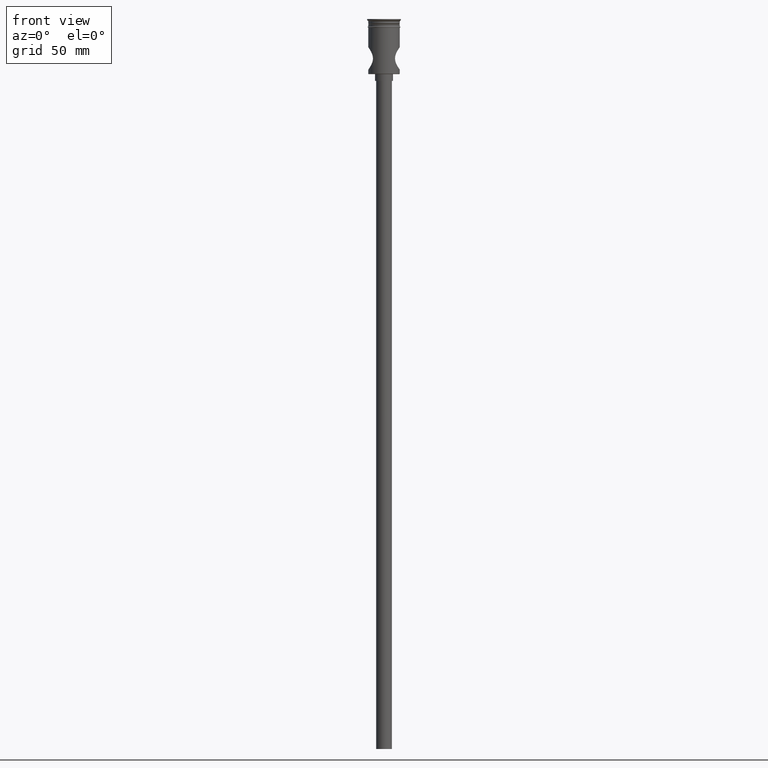
[diagram: clean part render]
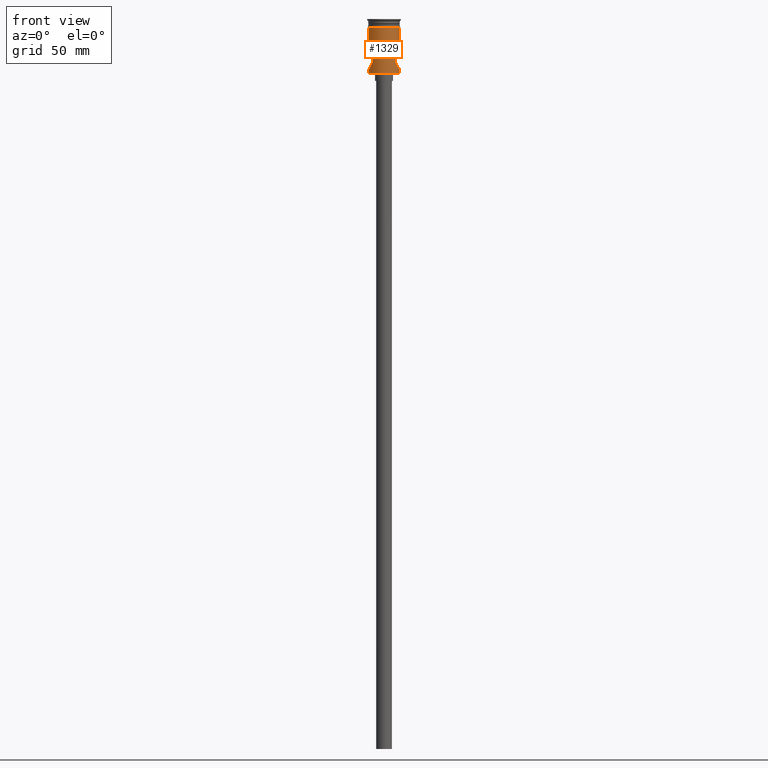
[diagram: same view with one face highlighted and labeled with its STEP entity id]
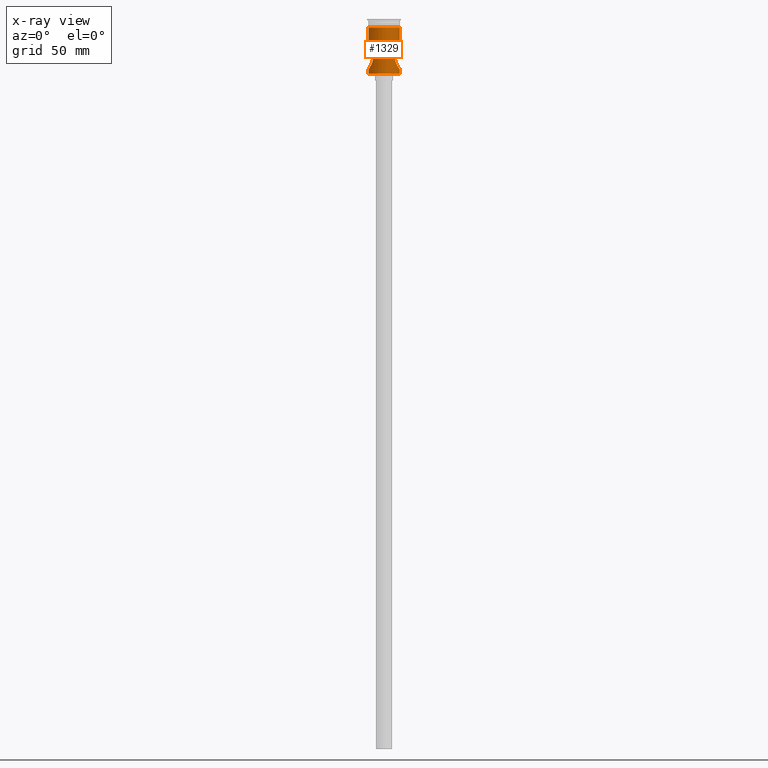
[diagram: x-ray of the same camera — body ghosted, the highlighted face saturated]
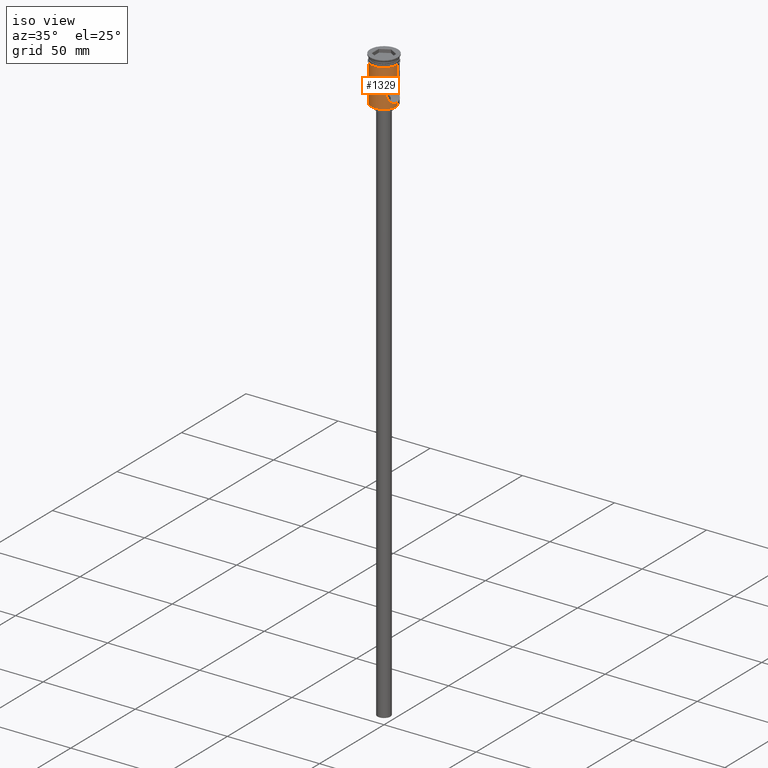
[diagram: same view with one face highlighted and labeled with its STEP entity id]
A machine part, front view. The second image highlights one B-rep face of the part: STEP entity #1329.
The next image is the same camera in x-ray: the body ghosted, the highlighted face saturated — about 0% of this face is hidden behind the body in this view.
A second angle (iso view) of the same face is appended — the face is thin or edge-on in the first view.
In plain terms, the highlighted cylindrical surface (edge-blend (fillet) strip) has radius 7 mm, axis along (-0, -0, 1).
Its self-contained STEP definition (entity closure, byte-faithful):
#3 = CARTESIAN_POINT ( 'NONE',  ( 6.624517184282109561, -2.266908297124829108, -13.04044276553849002 ) ) ;
#13 = CYLINDRICAL_SURFACE ( 'NONE', #475, 6.999999999999996447 ) ;
#17 = CARTESIAN_POINT ( 'NONE',  ( 5.900022963542600252, -3.775732323944060553, -14.20705562262494759 ) ) ;
#26 = CARTESIAN_POINT ( 'NONE',  ( 5.766850669963372589, -3.973799787454027399, -14.44906282454845936 ) ) ;
#36 = CARTESIAN_POINT ( 'NONE',  ( -6.999999999999996447, 8.572533153570467989E-16, -12.50000000000000000 ) ) ;
#70 = VECTOR ( 'NONE', #1303, 1000.000000000000000 ) ;
#80 = CARTESIAN_POINT ( 'NONE',  ( -6.163412594259888522, -3.328521687271349894, -13.75554919995812675 ) ) ;
#85 = CARTESIAN_POINT ( 'NONE',  ( -6.877389265331919077, -1.346411915329735587, -12.67290639567982424 ) ) ;
#103 = CARTESIAN_POINT ( 'NONE',  ( -5.328862411543377142, -4.539851137495588773, -15.39859786766767336 ) ) ;
#110 = CARTESIAN_POINT ( 'NONE',  ( 6.878322084194203434, -1.341499001965813509, -22.32841954660989003 ) ) ;
#117 = CARTESIAN_POINT ( 'NONE',  ( 6.999999999999999112, 0.000000000000000000, -3.799999999999998490 ) ) ;
#118 = CARTESIAN_POINT ( 'NONE',  ( 6.289754092268240449, -3.085829967940952656, -13.55283859579834527 ) ) ;
#140 = CARTESIAN_POINT ( 'NONE',  ( 4.908461367085028115, -4.990754227678548816, -17.84806495844127383 ) ) ;
#145 = DIRECTION ( 'NONE',  ( 1.000000000000000000, 0.000000000000000000, 0.000000000000000000 ) ) ;
#165 = VECTOR ( 'NONE', #1071, 1000.000000000000000 ) ;
#169 = DIRECTION ( 'NONE',  ( -0.000000000000000000, -0.000000000000000000, 1.000000000000000000 ) ) ;
#174 = B_SPLINE_CURVE_WITH_KNOTS ( 'NONE', 3,
 ( #330, #433, #540, #323, #1000, #440, #284, #293, #904, #1007, #534, #976, #549, #674, #1235, #781, #788, #1209, #657, #214, #1138, #1241, #1365, #1251, #1470, #651, #1115, #103, #1484, #753, #887, #1121, #556, #80, #1459, #447, #205, #424, #85, #912, #742, #1351 ),
 .UNSPECIFIED., .F., .F.,
 ( 4, 2, 2, 2, 2, 2, 2, 2, 2, 2, 2, 2, 2, 2, 2, 2, 2, 2, 2, 2, 4 ),
 ( 0.000000000000000000, 0.001017778397128055699, 0.002035556794256111399, 0.003053335191384167098, 0.004071113588512222797, 0.005088891985640278497, 0.006106670382768334196, 0.006615559581332362479, 0.007124448779896391630, 0.007633337978460419913, 0.008142227177024449064, 0.008651116375588475613, 0.009160005574152505631, 0.01017778397128055352, 0.01068667316984457834, 0.01119556236840860142, 0.01221334076553664411, 0.01323111916266468679, 0.01424889755979273122, 0.01526667595692077217, 0.01628445435404881486 ),
 .UNSPECIFIED. ) ;
#205 = CARTESIAN_POINT ( 'NONE',  ( -6.627237468456898206, -2.276106889563763946, -13.03576710784931514 ) ) ;
#214 = CARTESIAN_POINT ( 'NONE',  ( -4.907798977527274786, -4.991404953799127853, -17.83934536331389609 ) ) ;
#229 = CARTESIAN_POINT ( 'NONE',  ( 5.381635726961874866, -4.479484118326246822, -15.25543733555521264 ) ) ;
#235 = VECTOR ( 'NONE', #1047, 1000.000000000000000 ) ;
#239 = CARTESIAN_POINT ( 'NONE',  ( 5.904538784229269588, -3.768631959499706863, -20.80097026480864031 ) ) ;
#254 = CARTESIAN_POINT ( 'NONE',  ( 6.673734349475702210, -2.118082564557161263, -12.96778522737479733 ) ) ;
#272 = CARTESIAN_POINT ( 'NONE',  ( -6.999999999999996447, 8.572527594031468259E-16, 0.000000000000000000 ) ) ;
#284 = CARTESIAN_POINT ( 'NONE',  ( -6.523396179854662691, -2.555366162349213877, -21.80976297051136470 ) ) ;
#285 = CARTESIAN_POINT ( 'NONE',  ( 0.000000000000000000, 0.000000000000000000, -24.29999999999998295 ) ) ;
#291 = AXIS2_PLACEMENT_3D ( 'NONE', #669, #684, #906 ) ;
#293 = CARTESIAN_POINT ( 'NONE',  ( -6.288925692808939871, -3.087718830034457795, -21.44587702701452514 ) ) ;
#323 = CARTESIAN_POINT ( 'NONE',  ( -6.878409767648492767, -1.341070845160087455, -22.32854432384573684 ) ) ;
#327 = EDGE_CURVE ( 'NONE', #877, #711, #1494, .T. ) ;
#330 = CARTESIAN_POINT ( 'NONE',  ( -6.999999999999996447, 0.000000000000000000, -22.50000000000000355 ) ) ;
#333 = CARTESIAN_POINT ( 'NONE',  ( -6.999999999999996447, 0.000000000000000000, -22.50000000000000355 ) ) ;
#339 = CARTESIAN_POINT ( 'NONE',  ( 6.975075911005133023, -0.6793982586713426253, -12.53471494170770306 ) ) ;
#348 = CARTESIAN_POINT ( 'NONE',  ( 6.999999999999996447, -5.559544561199393959E-22, -12.50000000000000000 ) ) ;
#357 = CARTESIAN_POINT ( 'NONE',  ( 5.220660888952586731, -4.663868933387905535, -19.30946716320038448 ) ) ;
#359 = EDGE_LOOP ( 'NONE', ( #459, #362, #413, #835, #1331, #1075, #1339, #554 ) ) ;
#362 = ORIENTED_EDGE ( 'NONE', *, *, #1111, .T. ) ;
#368 = VERTEX_POINT ( 'NONE', #804 ) ;
#413 = ORIENTED_EDGE ( 'NONE', *, *, #327, .T. ) ;
#424 = CARTESIAN_POINT ( 'NONE',  ( -6.806176255248581164, -1.666404458266062649, -12.77420545626974224 ) ) ;
#428 = EDGE_CURVE ( 'NONE', #1380, #368, #834, .T. ) ;
#433 = CARTESIAN_POINT ( 'NONE',  ( -6.999999999999996447, -0.3448249822885355309, -22.50000000000000355 ) ) ;
#440 = CARTESIAN_POINT ( 'NONE',  ( -6.629274812495740576, -2.269772407451148055, -21.96723436692712994 ) ) ;
#447 = CARTESIAN_POINT ( 'NONE',  ( -6.522179950175094554, -2.558034936992928277, -13.19213903168321522 ) ) ;
#456 = CARTESIAN_POINT ( 'NONE',  ( 6.999999999999995559, -0.3443248772558980542, -22.50000000000000000 ) ) ;
#459 = ORIENTED_EDGE ( 'NONE', *, *, #1344, .F. ) ;
#461 = CARTESIAN_POINT ( 'NONE',  ( 5.385323867458159164, -4.475062125113562495, -19.75326393182406903 ) ) ;
#471 = LINE ( 'NONE', #938, #70 ) ;
#475 = AXIS2_PLACEMENT_3D ( 'NONE', #822, #1288, #145 ) ;
#477 = CARTESIAN_POINT ( 'NONE',  ( 5.508043593449563957, -4.325402544629331381, -14.97211645318934004 ) ) ;
#485 = CARTESIAN_POINT ( 'NONE',  ( 5.077364955457301932, -4.819225539182824924, -18.84248696074795149 ) ) ;
#512 = B_SPLINE_CURVE_WITH_KNOTS ( 'NONE', 3,
 ( #348, #597, #339, #1292, #931, #254, #3, #715, #1053, #118, #798, #17, #26, #477, #229, #809, #1394, #578, #688, #1172, #140, #1382, #1063, #1259, #485, #1150, #357, #461, #819, #1285, #239, #681, #1144, #709, #1158, #701, #110, #563, #456, #1032 ),
 .UNSPECIFIED., .F., .F.,
 ( 4, 2, 2, 2, 2, 2, 2, 2, 2, 2, 2, 2, 2, 2, 2, 2, 2, 2, 2, 4 ),
 ( 0.01628445435404881486, 0.01730075665134460025, 0.01831705894864038217, 0.01882521009728827660, 0.01933336124593617103, 0.02034966354323195642, 0.02136596584052773834, 0.02238226813782352373, 0.02339857043511930912, 0.02441487273241509451, 0.02492302388106299241, 0.02543117502971088684, 0.02593932617835878474, 0.02644747732700668263, 0.02746377962430248537, 0.02848008192159828811, 0.02949638421889409085, 0.03051268651618989358, 0.03152898881348569632, 0.03254529111078149906 ),
 .UNSPECIFIED. ) ;
#534 = CARTESIAN_POINT ( 'NONE',  ( -5.765831995741617533, -3.975245358282917696, -20.54897793578650678 ) ) ;
#540 = CARTESIAN_POINT ( 'NONE',  ( -6.974683072853315124, -0.6817536040784990536, -22.46472792027995879 ) ) ;
#549 = CARTESIAN_POINT ( 'NONE',  ( -5.383875121910168815, -4.476817073581178086, -19.74995831670789670 ) ) ;
#554 = ORIENTED_EDGE ( 'NONE', *, *, #1401, .F. ) ;
#556 = CARTESIAN_POINT ( 'NONE',  ( -5.901355755354761534, -3.773686748851627915, -14.20466136214932007 ) ) ;
#563 = CARTESIAN_POINT ( 'NONE',  ( 6.974619610468724140, -0.6823602827348922428, -22.46463889269961456 ) ) ;
#567 = AXIS2_PLACEMENT_3D ( 'NONE', #285, #677, #693 ) ;
#578 = CARTESIAN_POINT ( 'NONE',  ( 4.934803760294868447, -4.965557229327412614, -16.82386648148100150 ) ) ;
#590 = VERTEX_POINT ( 'NONE', #1143 ) ;
#597 = CARTESIAN_POINT ( 'NONE',  ( 6.999999999999999112, -0.3397238778479505505, -12.50000000000000533 ) ) ;
#612 = FACE_OUTER_BOUND ( 'NONE', #359, .T. ) ;
#639 = CARTESIAN_POINT ( 'NONE',  ( -6.999999999999996447, 8.572527594031468259E-16, -24.29999999999998295 ) ) ;
#651 = CARTESIAN_POINT ( 'NONE',  ( -5.069539922197811244, -4.827927654831068338, -16.15669568881665441 ) ) ;
#657 = CARTESIAN_POINT ( 'NONE',  ( -4.943019484790466045, -4.956528279916297741, -18.17978386182895179 ) ) ;
#660 = CARTESIAN_POINT ( 'NONE',  ( 6.999999999999996447, 0.000000000000000000, -24.29999999999998295 ) ) ;
#668 = VECTOR ( 'NONE', #169, 1000.000000000000000 ) ;
#669 = CARTESIAN_POINT ( 'NONE',  ( 0.000000000000000000, 0.000000000000000000, -3.799999999999998490 ) ) ;
#674 = CARTESIAN_POINT ( 'NONE',  ( -5.218822708204850613, -4.665928648188177874, -19.30420640014511591 ) ) ;
#677 = DIRECTION ( 'NONE',  ( -0.000000000000000000, -0.000000000000000000, 1.000000000000000000 ) ) ;
#681 = CARTESIAN_POINT ( 'NONE',  ( 6.165209272184617006, -3.325110483998857003, -21.24734997091469424 ) ) ;
#684 = DIRECTION ( 'NONE',  ( -0.000000000000000000, -0.000000000000000000, 1.000000000000000000 ) ) ;
#688 = CARTESIAN_POINT ( 'NONE',  ( 4.898713443770691178, -5.000260666815379729, -17.16047788894091752 ) ) ;
#693 = DIRECTION ( 'NONE',  ( -1.000000000000000000, 0.000000000000000000, 0.000000000000000000 ) ) ;
#701 = CARTESIAN_POINT ( 'NONE',  ( 6.805936086033878674, -1.666627172151767367, -22.22542051994379975 ) ) ;
#708 = CARTESIAN_POINT ( 'NONE',  ( 6.999999999999996447, 0.000000000000000000, -22.50000000000000355 ) ) ;
#709 = CARTESIAN_POINT ( 'NONE',  ( 6.525356721813722949, -2.550056080968596373, -21.81267208194016760 ) ) ;
#711 = VERTEX_POINT ( 'NONE', #708 ) ;
#715 = CARTESIAN_POINT ( 'NONE',  ( 6.519877710032068840, -2.552311853721904278, -13.19741610699314016 ) ) ;
#717 = CARTESIAN_POINT ( 'NONE',  ( 6.999999999999996447, 0.000000000000000000, 0.000000000000000000 ) ) ;
#742 = CARTESIAN_POINT ( 'NONE',  ( -6.999999999999997335, -0.3402173002877514896, -12.50000000000000178 ) ) ;
#753 = CARTESIAN_POINT ( 'NONE',  ( -5.511313949235637999, -4.316828484673398414, -14.97205977871709415 ) ) ;
#758 = VERTEX_POINT ( 'NONE', #117 ) ;
#781 = CARTESIAN_POINT ( 'NONE',  ( -5.075160898063482584, -4.821543316883922792, -18.83416791088078668 ) ) ;
#788 = CARTESIAN_POINT ( 'NONE',  ( -5.035064757863625395, -4.863162860794926878, -18.67369050689208265 ) ) ;
#798 = CARTESIAN_POINT ( 'NONE',  ( 6.161707611671310758, -3.331633962589205744, -13.75836233797496533 ) ) ;
#804 = CARTESIAN_POINT ( 'NONE',  ( -7.000000000000000000, 8.572527594031472204E-16, -3.799999999999998490 ) ) ;
#809 = CARTESIAN_POINT ( 'NONE',  ( 5.162336326394759922, -4.730545921691760469, -15.84900793347695647 ) ) ;
#819 = CARTESIAN_POINT ( 'NONE',  ( 5.510292512720397440, -4.322635034373780272, -20.03289028278534190 ) ) ;
#822 = CARTESIAN_POINT ( 'NONE',  ( 0.000000000000000000, 0.000000000000000000, 0.000000000000000000 ) ) ;
#834 = LINE ( 'NONE', #272, #165 ) ;
#835 = ORIENTED_EDGE ( 'NONE', *, *, #1496, .F. ) ;
#877 = VERTEX_POINT ( 'NONE', #660 ) ;
#887 = CARTESIAN_POINT ( 'NONE',  ( -5.574789878013862499, -4.234804902448966679, -14.83709141481580396 ) ) ;
#904 = CARTESIAN_POINT ( 'NONE',  ( -6.162478002351688744, -3.330174978408510178, -21.24288214826860255 ) ) ;
#906 = DIRECTION ( 'NONE',  ( 1.000000000000000000, 0.000000000000000000, 0.000000000000000000 ) ) ;
#912 = CARTESIAN_POINT ( 'NONE',  ( -6.974267267734871822, -0.6862246212768641218, -12.53585319719852720 ) ) ;
#931 = CARTESIAN_POINT ( 'NONE',  ( 6.806988922152785726, -1.662804102803706163, -12.77304955625404048 ) ) ;
#938 = CARTESIAN_POINT ( 'NONE',  ( -6.999999999999996447, 8.572527594031468259E-16, 0.000000000000000000 ) ) ;
#952 = VERTEX_POINT ( 'NONE', #639 ) ;
#976 = CARTESIAN_POINT ( 'NONE',  ( -5.507665137062537575, -4.325854713192930134, -20.02701862118371778 ) ) ;
#1000 = CARTESIAN_POINT ( 'NONE',  ( -6.806291652246979851, -1.665396429013261459, -22.22593952615893897 ) ) ;
#1007 = CARTESIAN_POINT ( 'NONE',  ( -5.901369065369745037, -3.773598239158957757, -20.79532828289721635 ) ) ;
#1032 = CARTESIAN_POINT ( 'NONE',  ( 6.999999999999996447, 0.000000000000000000, -22.50000000000000355 ) ) ;
#1034 = CIRCLE ( 'NONE', #567, 6.999999999999996447 ) ;
#1047 = DIRECTION ( 'NONE',  ( -0.000000000000000000, -0.000000000000000000, 1.000000000000000000 ) ) ;
#1053 = CARTESIAN_POINT ( 'NONE',  ( 6.464316942199904936, -2.689506414539494905, -13.28192429162108112 ) ) ;
#1063 = CARTESIAN_POINT ( 'NONE',  ( 4.969884412147624886, -4.929758116149196567, -18.35178336719908287 ) ) ;
#1071 = DIRECTION ( 'NONE',  ( -0.000000000000000000, -0.000000000000000000, 1.000000000000000000 ) ) ;
#1075 = ORIENTED_EDGE ( 'NONE', *, *, #1131, .F. ) ;
#1111 = EDGE_CURVE ( 'NONE', #952, #877, #1034, .T. ) ;
#1115 = CARTESIAN_POINT ( 'NONE',  ( -5.163543367690774488, -4.729261221067855736, -15.84511468902912590 ) ) ;
#1121 = CARTESIAN_POINT ( 'NONE',  ( -5.768304064841209389, -3.971660509004134809, -14.44639040140507724 ) ) ;
#1130 = CARTESIAN_POINT ( 'NONE',  ( 6.999999999999996447, 0.000000000000000000, 0.000000000000000000 ) ) ;
#1131 = EDGE_CURVE ( 'NONE', #368, #758, #1423, .T. ) ;
#1138 = CARTESIAN_POINT ( 'NONE',  ( -4.898875233353443548, -5.000102145928885911, -17.66716118737664232 ) ) ;
#1143 = CARTESIAN_POINT ( 'NONE',  ( 6.999999999999996447, -5.559544561199393959E-22, -12.50000000000000000 ) ) ;
#1144 = CARTESIAN_POINT ( 'NONE',  ( 6.293637646572689093, -3.077855022031981580, -21.45331948693545954 ) ) ;
#1150 = CARTESIAN_POINT ( 'NONE',  ( 5.169488514657019529, -4.720270986420918469, -19.15718069384215738 ) ) ;
#1158 = CARTESIAN_POINT ( 'NONE',  ( 6.629571276977945793, -2.268743445522608759, -21.96766699740016193 ) ) ;
#1160 = VERTEX_POINT ( 'NONE', #333 ) ;
#1172 = CARTESIAN_POINT ( 'NONE',  ( 4.899114737268973840, -4.999867480858277702, -17.67548696206737446 ) ) ;
#1199 = LINE ( 'NONE', #1130, #668 ) ;
#1209 = CARTESIAN_POINT ( 'NONE',  ( -4.968992574149714514, -4.930653397323763620, -18.34649837096316460 ) ) ;
#1235 = CARTESIAN_POINT ( 'NONE',  ( -5.167013818061234609, -4.722976424013229035, -19.14947799901278813 ) ) ;
#1241 = CARTESIAN_POINT ( 'NONE',  ( -4.899085609211874193, -4.999896020448773015, -17.32678303492929217 ) ) ;
#1251 = CARTESIAN_POINT ( 'NONE',  ( -4.943068801648156985, -4.956478286556077251, -16.82026444464511528 ) ) ;
#1259 = CARTESIAN_POINT ( 'NONE',  ( 5.036472174957491887, -4.861708977790190289, -18.67976090952791779 ) ) ;
#1285 = CARTESIAN_POINT ( 'NONE',  ( 5.771108096911676810, -3.967720825599827972, -20.55906820373875732 ) ) ;
#1288 = DIRECTION ( 'NONE',  ( -0.000000000000000000, -0.000000000000000000, 1.000000000000000000 ) ) ;
#1292 = CARTESIAN_POINT ( 'NONE',  ( 6.877725454229275392, -1.345421322269137576, -12.67242512543099231 ) ) ;
#1303 = DIRECTION ( 'NONE',  ( -0.000000000000000000, -0.000000000000000000, 1.000000000000000000 ) ) ;
#1329 = ADVANCED_FACE ( 'NONE', ( #612 ), #13, .T. ) ;
#1331 = ORIENTED_EDGE ( 'NONE', *, *, #1419, .T. ) ;
#1339 = ORIENTED_EDGE ( 'NONE', *, *, #428, .F. ) ;
#1344 = EDGE_CURVE ( 'NONE', #952, #1160, #471, .T. ) ;
#1351 = CARTESIAN_POINT ( 'NONE',  ( -6.999999999999996447, 8.572533153570467989E-16, -12.50000000000000000 ) ) ;
#1365 = CARTESIAN_POINT ( 'NONE',  ( -4.908080539807011533, -4.991127287266563961, -17.15741302911732546 ) ) ;
#1380 = VERTEX_POINT ( 'NONE', #36 ) ;
#1382 = CARTESIAN_POINT ( 'NONE',  ( 4.943863480480452210, -4.955687100658114019, -18.18552340350770891 ) ) ;
#1394 = CARTESIAN_POINT ( 'NONE',  ( 5.067898708447169831, -4.829642785058294585, -16.16266470123420618 ) ) ;
#1401 = EDGE_CURVE ( 'NONE', #1160, #1380, #174, .T. ) ;
#1419 = EDGE_CURVE ( 'NONE', #590, #758, #1199, .T. ) ;
#1423 = CIRCLE ( 'NONE', #291, 6.999999999999999112 ) ;
#1459 = CARTESIAN_POINT ( 'NONE',  ( -6.290874603390947506, -3.083386249848239835, -13.55108393410666956 ) ) ;
#1470 = CARTESIAN_POINT ( 'NONE',  ( -4.969341922738349737, -4.930306376958238701, -16.65122617411555339 ) ) ;
#1484 = CARTESIAN_POINT ( 'NONE',  ( -5.388400174924766084, -4.469310144529878848, -15.25261112388847806 ) ) ;
#1494 = LINE ( 'NONE', #717, #235 ) ;
#1496 = EDGE_CURVE ( 'NONE', #590, #711, #512, .T. ) ;